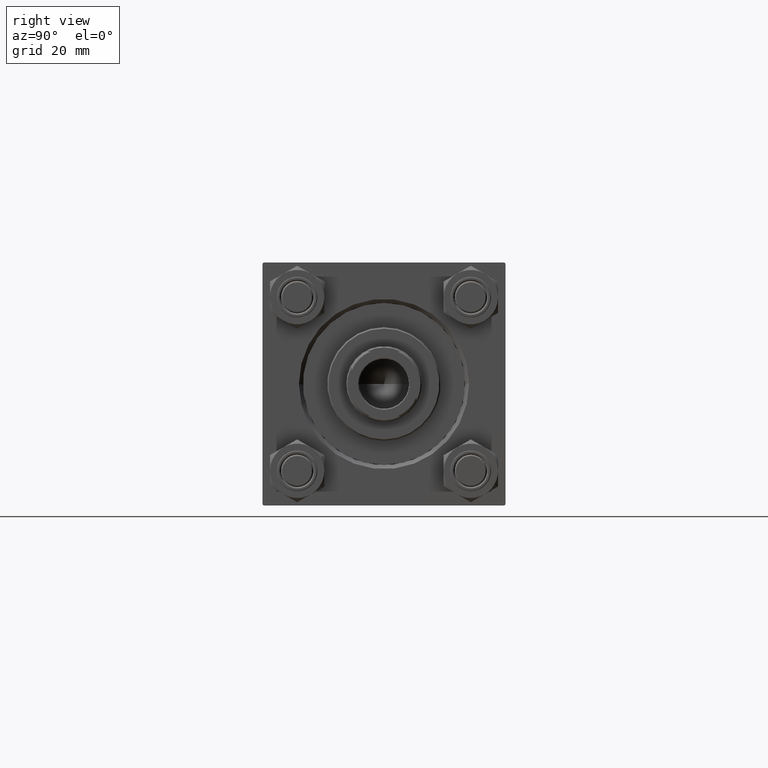
[diagram: clean part render]
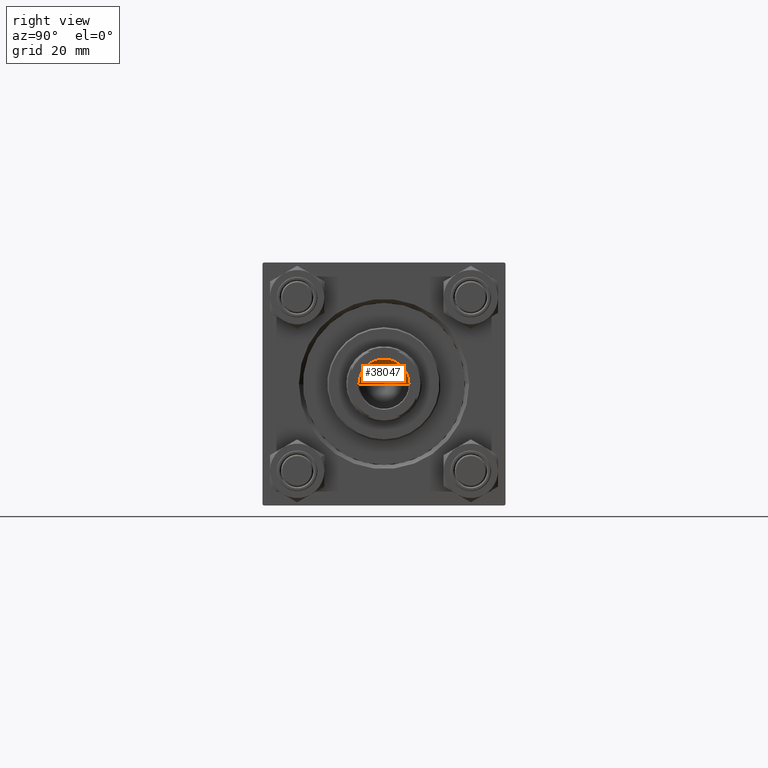
[diagram: same view with one face highlighted and labeled with its STEP entity id]
A machine part, right view. The second image highlights one B-rep face of the part: STEP entity #38047.
In plain terms, the highlighted conical surface has half-angle 59 deg.
Its self-contained STEP definition (entity closure, byte-faithful):
#102 = CARTESIAN_POINT ( 'NONE',  ( 0.000000000000000000, 0.000000000000000000, 114.9999999999999858 ) ) ;
#436 = VERTEX_POINT ( 'NONE', #9792 ) ;
#965 = VECTOR ( 'NONE', #1400, 1000.000000000000000 ) ;
#1400 = DIRECTION ( 'NONE',  ( -0.8571673007021117785, 1.049727191138617956E-16, 0.5150380749100550437 ) ) ;
#1558 = AXIS2_PLACEMENT_3D ( 'NONE', #102, #30780, #42347 ) ;
#1566 = CARTESIAN_POINT ( 'NONE',  ( -9.249999999999992895, 1.132798289211300712E-15, 114.9999999999999858 ) ) ;
#7054 = AXIS2_PLACEMENT_3D ( 'NONE', #46687, #30831, #11476 ) ;
#7411 = ORIENTED_EDGE ( 'NONE', *, *, #39260, .F. ) ;
#8010 = ORIENTED_EDGE ( 'NONE', *, *, #42471, .T. ) ;
#8686 = CARTESIAN_POINT ( 'NONE',  ( 9.249999999999992895, 0.000000000000000000, 114.9999999999999858 ) ) ;
#9792 = CARTESIAN_POINT ( 'NONE',  ( -9.769621978240258809E-15, 0.000000000000000000, 109.4420392739950501 ) ) ;
#11476 = DIRECTION ( 'NONE',  ( 1.000000000000000000, 0.000000000000000000, 0.000000000000000000 ) ) ;
#11859 = ORIENTED_EDGE ( 'NONE', *, *, #16767, .T. ) ;
#12423 = EDGE_LOOP ( 'NONE', ( #7411, #11859, #8010 ) ) ;
#16713 = CONICAL_SURFACE ( 'NONE', #7054, 9.249999999999992895, 1.029744258676653423 ) ;
#16767 = EDGE_CURVE ( 'NONE', #436, #27939, #35860, .T. ) ;
#20763 = CARTESIAN_POINT ( 'NONE',  ( -9.249999999999992895, 1.132798289211300712E-15, 114.9999999999999858 ) ) ;
#23239 = CIRCLE ( 'NONE', #1558, 9.249999999999992895 ) ;
#25873 = CARTESIAN_POINT ( 'NONE',  ( 9.249999999999992895, 0.000000000000000000, 114.9999999999999858 ) ) ;
#27939 = VERTEX_POINT ( 'NONE', #1566 ) ;
#30780 = DIRECTION ( 'NONE',  ( -0.000000000000000000, -0.000000000000000000, 1.000000000000000000 ) ) ;
#30831 = DIRECTION ( 'NONE',  ( -0.000000000000000000, -0.000000000000000000, 1.000000000000000000 ) ) ;
#31820 = DIRECTION ( 'NONE',  ( 0.8571673007021117785, 0.000000000000000000, 0.5150380749100550437 ) ) ;
#35860 = LINE ( 'NONE', #20763, #965 ) ;
#36967 = VERTEX_POINT ( 'NONE', #25873 ) ;
#38047 = ADVANCED_FACE ( 'NONE', ( #38881 ), #16713, .F. ) ;
#38881 = FACE_OUTER_BOUND ( 'NONE', #12423, .T. ) ;
#39260 = EDGE_CURVE ( 'NONE', #436, #36967, #46426, .T. ) ;
#42347 = DIRECTION ( 'NONE',  ( 1.000000000000000000, 0.000000000000000000, 0.000000000000000000 ) ) ;
#42471 = EDGE_CURVE ( 'NONE', #27939, #36967, #23239, .T. ) ;
#45652 = VECTOR ( 'NONE', #31820, 1000.000000000000000 ) ;
#46426 = LINE ( 'NONE', #8686, #45652 ) ;
#46687 = CARTESIAN_POINT ( 'NONE',  ( 0.000000000000000000, 0.000000000000000000, 114.9999999999999858 ) ) ;